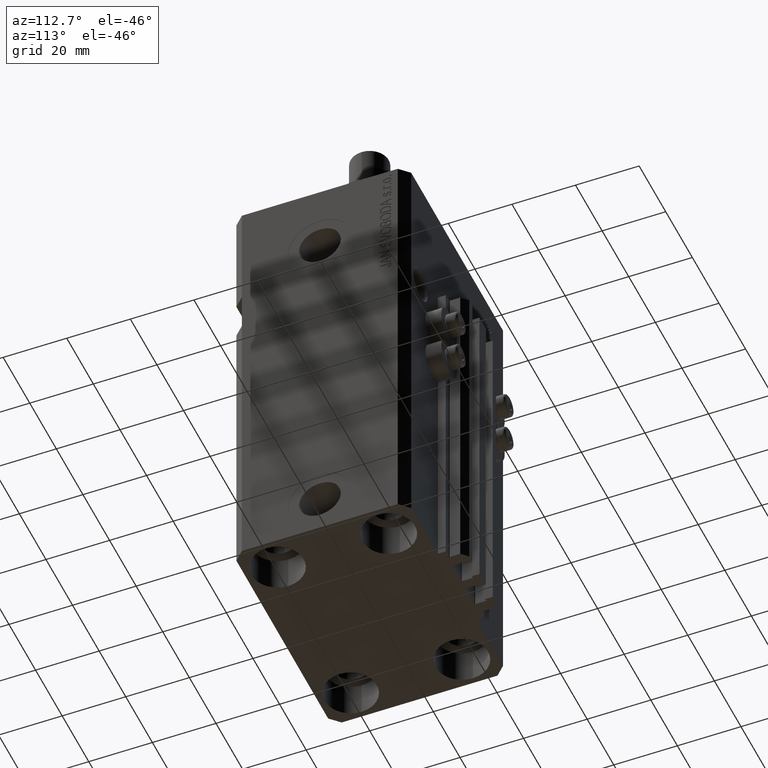
[diagram: clean part render]
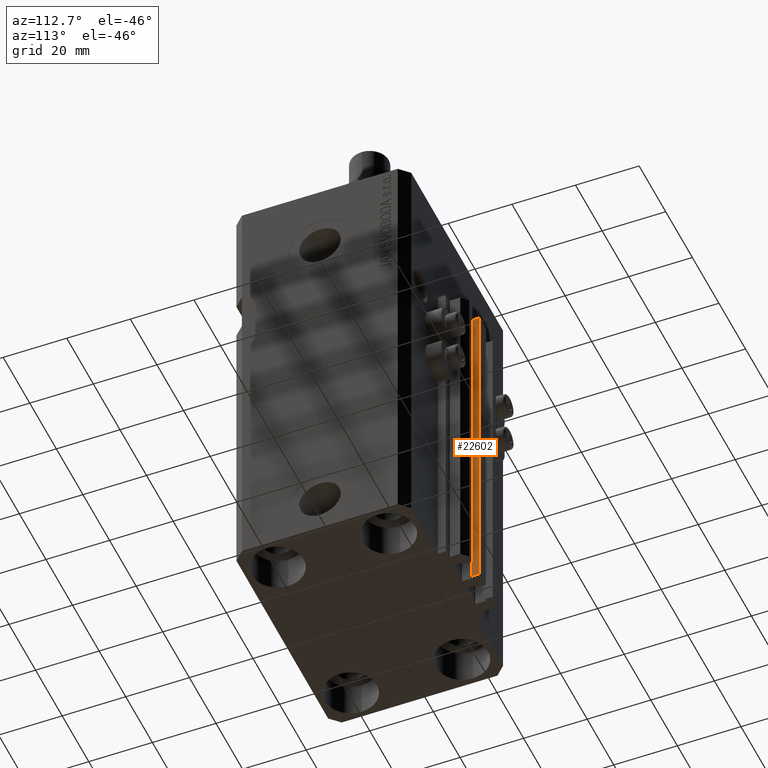
[diagram: same view with one face highlighted and labeled with its STEP entity id]
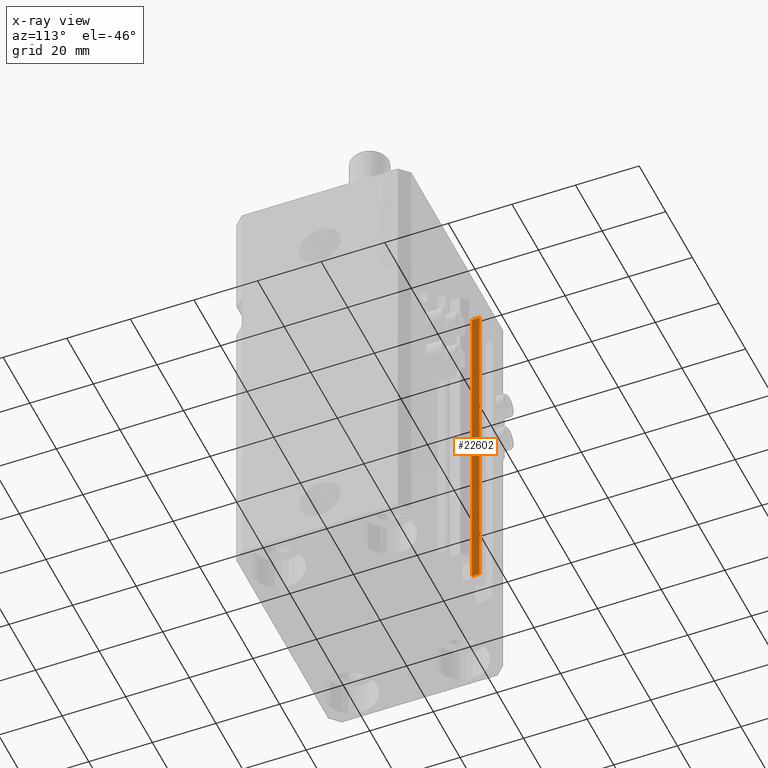
[diagram: x-ray of the same camera — body ghosted, the highlighted face saturated]
A machine part, auxiliary view. The second image highlights one B-rep face of the part: STEP entity #22602.
The next image is the same camera in x-ray: the body ghosted, the highlighted face saturated — about 0% of this face is hidden behind the body in this view.
In plain terms, the highlighted planar face has unit normal (1, 0, 0).
Its self-contained STEP definition (entity closure, byte-faithful):
#237 = CARTESIAN_POINT ( 'NONE',  ( 2.349999999999999645, 33.10000000000000853, -140.0000000000000000 ) ) ;
#5171 = ORIENTED_EDGE ( 'NONE', *, *, #22839, .F. ) ;
#7543 = ORIENTED_EDGE ( 'NONE', *, *, #47935, .F. ) ;
#8188 = CARTESIAN_POINT ( 'NONE',  ( 2.349999999999999645, 35.50000000000001421, -33.00000000000000000 ) ) ;
#8489 = LINE ( 'NONE', #8957, #13483 ) ;
#8957 = CARTESIAN_POINT ( 'NONE',  ( 2.349999999999999645, 33.10000000000000853, -140.0000000000000000 ) ) ;
#11920 = VECTOR ( 'NONE', #48219, 1000.000000000000000 ) ;
#11976 = LINE ( 'NONE', #33533, #11920 ) ;
#12107 = CARTESIAN_POINT ( 'NONE',  ( 2.349999999999999645, 33.10000000000000853, -140.0000000000000000 ) ) ;
#13483 = VECTOR ( 'NONE', #23411, 1000.000000000000000 ) ;
#14009 = ORIENTED_EDGE ( 'NONE', *, *, #30315, .T. ) ;
#18776 = ORIENTED_EDGE ( 'NONE', *, *, #29753, .T. ) ;
#19267 = CARTESIAN_POINT ( 'NONE',  ( 2.349999999999999645, 35.50000000000001421, -140.0000000000000000 ) ) ;
#20143 = PLANE ( 'NONE',  #31255 ) ;
#20308 = VECTOR ( 'NONE', #23362, 1000.000000000000000 ) ;
#22307 = LINE ( 'NONE', #41674, #38274 ) ;
#22602 = ADVANCED_FACE ( 'NONE', ( #24067 ), #20143, .T. ) ;
#22839 = EDGE_CURVE ( 'NONE', #39315, #31449, #22307, .T. ) ;
#23362 = DIRECTION ( 'NONE',  ( 0.000000000000000000, 0.000000000000000000, 1.000000000000000000 ) ) ;
#23411 = DIRECTION ( 'NONE',  ( 0.000000000000000000, 1.000000000000000000, 0.000000000000000000 ) ) ;
#24067 = FACE_OUTER_BOUND ( 'NONE', #38769, .T. ) ;
#26882 = VERTEX_POINT ( 'NONE', #237 ) ;
#29753 = EDGE_CURVE ( 'NONE', #43856, #31449, #11976, .T. ) ;
#30315 = EDGE_CURVE ( 'NONE', #26882, #43856, #8489, .T. ) ;
#31255 = AXIS2_PLACEMENT_3D ( 'NONE', #46858, #32160, #34861 ) ;
#31449 = VERTEX_POINT ( 'NONE', #8188 ) ;
#32160 = DIRECTION ( 'NONE',  ( 1.000000000000000000, 0.000000000000000000, 0.000000000000000000 ) ) ;
#33533 = CARTESIAN_POINT ( 'NONE',  ( 2.349999999999999645, 35.50000000000001421, -140.0000000000000000 ) ) ;
#34861 = DIRECTION ( 'NONE',  ( 0.000000000000000000, 0.000000000000000000, -1.000000000000000000 ) ) ;
#37251 = DIRECTION ( 'NONE',  ( 0.000000000000000000, 1.000000000000000000, 0.000000000000000000 ) ) ;
#38274 = VECTOR ( 'NONE', #37251, 1000.000000000000000 ) ;
#38769 = EDGE_LOOP ( 'NONE', ( #5171, #7543, #14009, #18776 ) ) ;
#39315 = VERTEX_POINT ( 'NONE', #41204 ) ;
#41204 = CARTESIAN_POINT ( 'NONE',  ( 2.349999999999999645, 33.10000000000000853, -33.00000000000000000 ) ) ;
#41674 = CARTESIAN_POINT ( 'NONE',  ( 2.349999999999999645, 33.10000000000000853, -33.00000000000000000 ) ) ;
#42456 = LINE ( 'NONE', #12107, #20308 ) ;
#43856 = VERTEX_POINT ( 'NONE', #19267 ) ;
#46858 = CARTESIAN_POINT ( 'NONE',  ( 2.349999999999999645, 33.10000000000000853, -140.0000000000000000 ) ) ;
#47935 = EDGE_CURVE ( 'NONE', #26882, #39315, #42456, .T. ) ;
#48219 = DIRECTION ( 'NONE',  ( 0.000000000000000000, 0.000000000000000000, 1.000000000000000000 ) ) ;